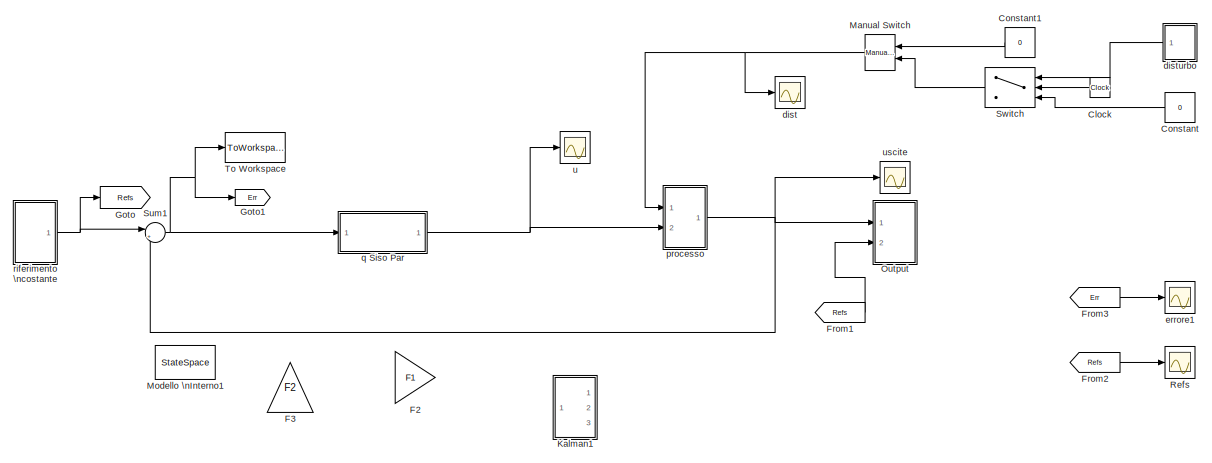
[diagram: root canvas - part 1/2, left side, full height]
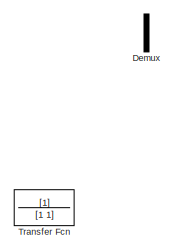
[diagram: root canvas - part 2/2, middle right region]
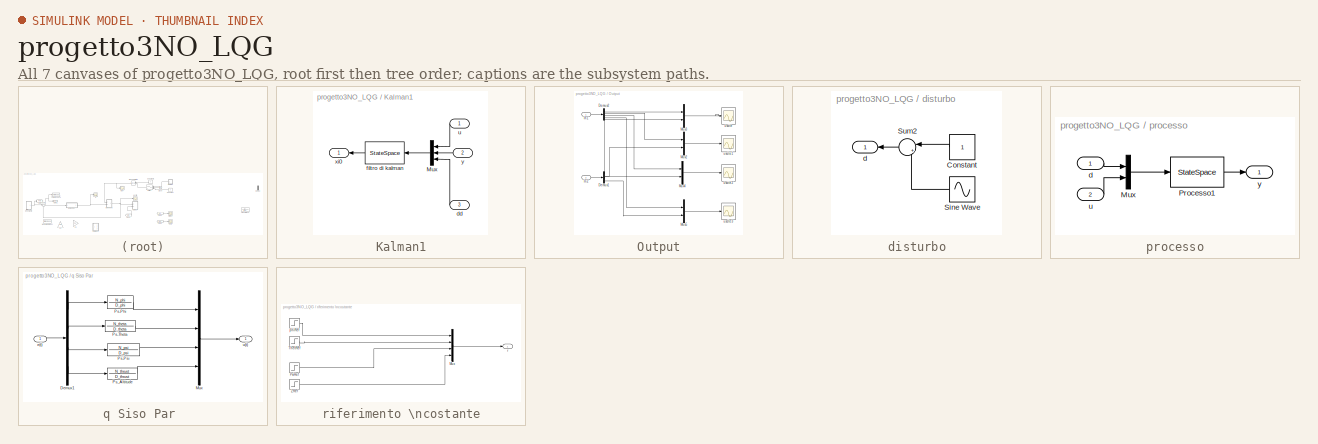
[diagram: thumbnail index - all 7 canvases of the model, root first then tree order]
MODEL progetto3NO_LQG
KIND model
BLOCK [Clock] Clock
  SID = 104
BLOCK [Constant] Constant
  SID = 106
  Value = 0
BLOCK [Constant] Constant1
  SID = 148
  Value = 0
BLOCK [Demux] Demux
  DisplayOption = bar
  Outputs = 2
  Ports = [1, 2]
  SID = 111
BLOCK [Gain] F2
  Gain = F1
  Multiplication = Matrix(K*u) (u vector)
  OutDataTypeStr = Inherit: Inherit via internal rule
  ParamDataTypeStr = Inherit: Inherit via internal rule
  SID = 137
  SaturateOnIntegerOverflow = off
BLOCK [Gain] F3
  Gain = F2
  Multiplication = Matrix(K*u) (u vector)
  OutDataTypeStr = Inherit: Inherit via internal rule
  ParamDataTypeStr = Inherit: Inherit via internal rule
  SID = 134
  SaturateOnIntegerOverflow = off
BLOCK [From] From1
  GotoTag = Refs
  SID = 69
BLOCK [From] From2
  GotoTag = Refs
  SID = 84
BLOCK [From] From3
  GotoTag = Err
  SID = 85
BLOCK [Goto] Goto
  GotoTag = Refs
  SID = 68
BLOCK [Goto] Goto1
  GotoTag = Err
  SID = 87
BLOCK [SubSystem] Kalman1
  FunctionWithSeparateData = off
  MaskHideContents = off
  MinAlgLoopOccurrences = off
  Opaque = off
  Ports = [3, 1]
  PropExecContextOutsideSubsystem = off
  RTWSystemCode = Auto
  RequestExecContextInheritance = off
  SID = 138
BLOCK [Mux] Kalman1/Mux
  DisplayOption = bar
  Inputs = [4 4 1]
  Ports = [3, 1]
  SID = 142
BLOCK [Inport] Kalman1/dd
  IconDisplay = Port number
  Port = 3
  SID = 141
BLOCK [StateSpace] Kalman1/filtro di kalman
  A = Aoss
  B = Boss
  C = Coss
  D = Doss
  SID = 143
BLOCK [Inport] Kalman1/u
  IconDisplay = Port number
  SID = 139
BLOCK [Outport] Kalman1/xi0
  IconDisplay = Port number
  SID = 144
BLOCK [Inport] Kalman1/y
  IconDisplay = Port number
  Port = 2
  SID = 140
BLOCK [Reference] Manual Switch  REF=simulink/Signal\nRouting/Manual Switch
  Ports = [2, 1]
  SID = 149
  SourceBlock = simulink/Signal\nRouting/Manual Switch
  SourceType = Manual Switch
  action = 0
  sw = 0
  varsize = off
BLOCK [StateSpace] Modello \nInterno1
  A = AMI
  B = BMI
  C = CMI
  D = DMI
  SID = 136
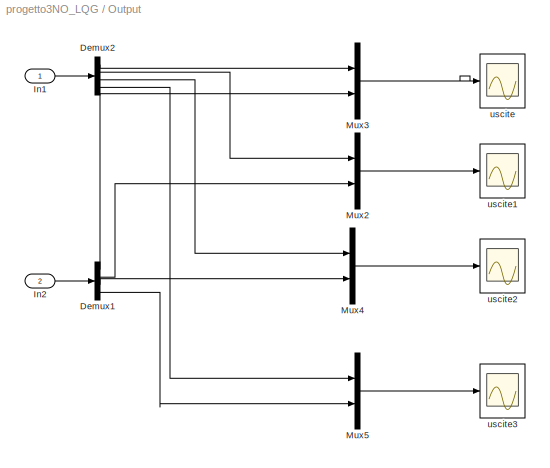
BLOCK [SubSystem] Output
  FunctionWithSeparateData = off
  MaskHideContents = off
  MinAlgLoopOccurrences = off
  Opaque = off
  Ports = [2]
  PropExecContextOutsideSubsystem = off
  RTWSystemCode = Auto
  RequestExecContextInheritance = off
  SID = 71
BLOCK [Demux] Output/Demux1
  DisplayOption = bar
  Ports = [1, 4]
  SID = 74
BLOCK [Demux] Output/Demux2
  DisplayOption = bar
  Ports = [1, 4]
  SID = 76
BLOCK [Inport] Output/In1
  IconDisplay = Port number
  SID = 72
BLOCK [Inport] Output/In2
  IconDisplay = Port number
  Port = 2
  SID = 73
BLOCK [Mux] Output/Mux2
  DisplayOption = bar
  Inputs = 2
  Ports = [2, 1]
  SID = 77
BLOCK [Mux] Output/Mux3
  DisplayOption = bar
  Inputs = 2
  Ports = [2, 1]
  SID = 64
BLOCK [Mux] Output/Mux4
  DisplayOption = bar
  Inputs = 2
  Ports = [2, 1]
  SID = 79
BLOCK [Mux] Output/Mux5
  DisplayOption = bar
  Inputs = 2
  Ports = [2, 1]
  SID = 81
BLOCK [Scope] Output/uscite
  DataFormat = StructureWithTime
  Floating = off
  LimitDataPoints = off
  NumInputPorts = 1
  Ports = [1]
  SID = 25
  SampleTime = 0
  ShowLegends = off
  TickLabels = on
  YMax = 7
  YMin = -3.5
  ZoomMode = xonly
BLOCK [Scope] Output/uscite1
  DataFormat = StructureWithTime
  Floating = off
  LimitDataPoints = off
  NumInputPorts = 1
  Ports = [1]
  SID = 78
  SampleTime = 0
  SaveName = ScopeData4
  ShowLegends = off
  TickLabels = on
  TimeRange = 30
  YMax = 4.25
  YMin = 0.75
  ZoomMode = xonly
BLOCK [Scope] Output/uscite2
  DataFormat = StructureWithTime
  Floating = off
  LimitDataPoints = off
  NumInputPorts = 1
  Ports = [1]
  SID = 80
  SampleTime = 0
  SaveName = ScopeData6
  ShowLegends = off
  TickLabels = on
  YMax = 4.25
  YMin = 0.75
  ZoomMode = xonly
BLOCK [Scope] Output/uscite3
  DataFormat = StructureWithTime
  Floating = off
  LimitDataPoints = off
  NumInputPorts = 1
  Ports = [1]
  SID = 82
  SampleTime = 0
  SaveName = ScopeData7
  ShowLegends = off
  TickLabels = on
  YMax = 4.25
  YMin = 0.75
  ZoomMode = xonly
BLOCK [Scope] Refs
  DataFormat = StructureWithTime
  Floating = off
  LimitDataPoints = off
  NumInputPorts = 1
  Ports = [1]
  SID = 83
  SampleTime = 0
  SaveName = ScopeData1
  ShowLegends = off
BLOCK [Sum] Sum1
  IconShape = round
  InputSameDT = off
  Inputs = |+-
  OutDataTypeStr = Inherit: Inherit via internal rule
  Ports = [2, 1]
  SID = 24
  SaturateOnIntegerOverflow = off
BLOCK [Switch] Switch
  InputSameDT = off
  SID = 103
  SaturateOnIntegerOverflow = off
  Threshold = 5
BLOCK [ToWorkspace] To Workspace
  MaxDataPoints = inf
  Ports = [1]
  SID = 59
  SampleTime = -1
  SaveFormat = Structure
  VariableName = simout
BLOCK [TransferFcn] Transfer Fcn
  Denominator = [1 1]
  SID = 116
BLOCK [Scope] dist
  DataFormat = StructureWithTime
  Floating = off
  LimitDataPoints = off
  NumInputPorts = 1
  Ports = [1]
  SID = 54
  SampleTime = 0
  SaveName = ScopeData5
  ShowLegends = off
BLOCK [SubSystem] disturbo
  FunctionWithSeparateData = off
  MaskHideContents = off
  MinAlgLoopOccurrences = off
  Opaque = off
  Ports = [0, 1]
  PropExecContextOutsideSubsystem = off
  RTWSystemCode = Auto
  RequestExecContextInheritance = off
  SID = 50
BLOCK [Constant] disturbo/Constant
  SID = 47
BLOCK [Sin] disturbo/Sine Wave
  Amplitude = 3
  Frequency = omega
  Ports = [0, 1]
  SID = 48
  SampleTime = 0
BLOCK [Sum] disturbo/Sum2
  IconShape = round
  InputSameDT = off
  Inputs = |++
  OutDataTypeStr = Inherit: Inherit via internal rule
  Ports = [2, 1]
  SID = 49
  SaturateOnIntegerOverflow = off
BLOCK [Outport] disturbo/d
  IconDisplay = Port number
  SID = 51
BLOCK [Scope] errore1
  DataFormat = StructureWithTime
  Floating = off
  LimitDataPoints = off
  NumInputPorts = 1
  Ports = [1]
  SID = 86
  SampleTime = 0
  SaveName = ScopeData8
  ShowLegends = off
BLOCK [SubSystem] processo
  FunctionWithSeparateData = off
  MaskHideContents = off
  MinAlgLoopOccurrences = off
  Opaque = off
  Ports = [2, 1]
  PropExecContextOutsideSubsystem = off
  RTWSystemCode = Auto
  RequestExecContextInheritance = off
  SID = 43
BLOCK [Mux] processo/Mux
  DisplayOption = bar
  Inputs = [1 4]
  Ports = [2, 1]
  SID = 41
BLOCK [StateSpace] processo/Processo1
  A = AMin
  B = Bmod
  C = ClocalMin
  D = Dmod
  SID = 42
BLOCK [Inport] processo/d
  IconDisplay = Port number
  SID = 44
BLOCK [Inport] processo/u
  IconDisplay = Port number
  Port = 2
  SID = 46
BLOCK [Outport] processo/y
  IconDisplay = Port number
  SID = 45
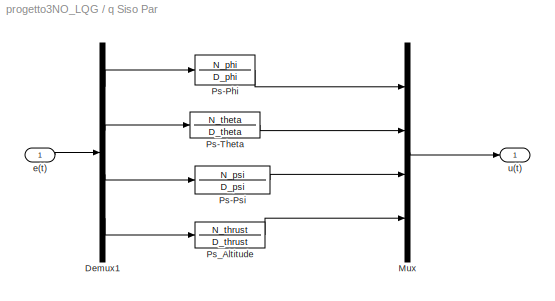
BLOCK [SubSystem] q Siso Par 
  FunctionWithSeparateData = off
  MaskHideContents = off
  MinAlgLoopOccurrences = off
  Opaque = off
  Ports = [1, 1]
  PropExecContextOutsideSubsystem = off
  RTWSystemCode = Auto
  RequestExecContextInheritance = off
  SID = 125
BLOCK [Demux] q Siso Par /Demux1
  DisplayOption = bar
  Ports = [1, 4]
  SID = 127
BLOCK [Mux] q Siso Par /Mux
  DisplayOption = bar
  Ports = [4, 1]
  SID = 128
BLOCK [TransferFcn] q Siso Par /Ps-Phi
  Denominator = D_phi
  Numerator = N_phi
  SID = 129
BLOCK [TransferFcn] q Siso Par /Ps-Psi
  Denominator = D_psi
  Numerator = N_psi
  SID = 130
BLOCK [TransferFcn] q Siso Par /Ps-Theta
  Denominator = D_theta
  Numerator = N_theta
  SID = 132
BLOCK [TransferFcn] q Siso Par /Ps_Altitude
  Denominator = D_thrust
  Numerator = N_thrust
  SID = 131
BLOCK [Inport] q Siso Par /e(t)
  IconDisplay = Port number
  SID = 126
BLOCK [Outport] q Siso Par /u(t)
  IconDisplay = Port number
  SID = 133
BLOCK [SubSystem] riferimento \ncostante
  FunctionWithSeparateData = off
  MaskHideContents = off
  MinAlgLoopOccurrences = off
  Opaque = off
  Ports = [0, 1]
  PropExecContextOutsideSubsystem = off
  RTWSystemCode = Auto
  RequestExecContextInheritance = off
  SID = 11
BLOCK [Mux] riferimento \ncostante/Mux
  DisplayOption = bar
  Inputs = [1 1 1 1]
  Ports = [4, 1]
  SID = 10
BLOCK [Step] riferimento \ncostante/PsiRef
  After = 2.5
  SID = 152
  SampleTime = 0
  Time = 0.8
BLOCK [Step] riferimento \ncostante/ThetRef
  After = 2
  SID = 151
  SampleTime = 0
  Time = 0.5
BLOCK [Step] riferimento \ncostante/ZRef
  After = 2.5
  SID = 146
  SampleTime = 0
  Time = 3
BLOCK [Step] riferimento \ncostante/phiRef
  After = 1.5
  SID = 150
  SampleTime = 0
BLOCK [Outport] riferimento \ncostante/r
  IconDisplay = Port number
  SID = 12
BLOCK [Scope] u
  DataFormat = StructureWithTime
  Floating = off
  LimitDataPoints = off
  NumInputPorts = 1
  Ports = [1]
  SID = 28
  SampleTime = 0
  SaveName = ScopeData3
  ShowLegends = off
  ZoomMode = xonly
BLOCK [Scope] uscite
  DataFormat = StructureWithTime
  Floating = off
  LimitDataPoints = off
  NumInputPorts = 1
  Ports = [1]
  SID = 88
  SampleTime = 0
  SaveName = ScopeData2
  ShowLegends = off
  TimeRange = 80
  YMax = 15.6384603336206
  YMin = -17.45927637246444
  ZoomMode = yonly
LINE Clock:1 -> Switch:2
LINE Constant1:1 -> Manual Switch:1
LINE Constant:1 -> Switch:3
LINE From1:1 -> Output:2
LINE From2:1 -> Refs:1
LINE From3:1 -> errore1:1
LINE Kalman1/Mux:1 -> Kalman1/filtro di kalman:1
LINE Kalman1/dd:1 -> Kalman1/Mux:3
LINE Kalman1/filtro di kalman:1 -> Kalman1/xi0:1
LINE Kalman1/u:1 -> Kalman1/Mux:1
LINE Kalman1/y:1 -> Kalman1/Mux:2
NET Manual Switch:1 -> dist:1, processo:1
LINE Output/Demux1:1 -> Output/Mux3:2
LINE Output/Demux1:2 -> Output/Mux2:2
LINE Output/Demux1:3 -> Output/Mux4:2
LINE Output/Demux1:4 -> Output/Mux5:2
LINE Output/Demux2:1 -> Output/Mux3:1
LINE Output/Demux2:2 -> Output/Mux2:1
LINE Output/Demux2:3 -> Output/Mux4:1
LINE Output/Demux2:4 -> Output/Mux5:1
LINE Output/In1:1 -> Output/Demux2:1
LINE Output/In2:1 -> Output/Demux1:1
LINE Output/Mux2:1 -> Output/uscite1:1
LINE Output/Mux3:1 -> Output/uscite:1
LINE Output/Mux4:1 -> Output/uscite2:1
LINE Output/Mux5:1 -> Output/uscite3:1
NET Sum1:1 -> Goto1:1, To Workspace:1, q Siso Par :1
LINE Switch:1 -> Manual Switch:2
LINE disturbo/Constant:1 -> disturbo/Sum2:1
LINE disturbo/Sine Wave:1 -> disturbo/Sum2:2
LINE disturbo/Sum2:1 -> disturbo/d:1
LINE disturbo:1 -> Switch:1
LINE processo/Mux:1 -> processo/Processo1:1
LINE processo/Processo1:1 -> processo/y:1
LINE processo/d:1 -> processo/Mux:1
LINE processo/u:1 -> processo/Mux:2
NET processo:1 -> Output:1, Sum1:2, uscite:1
LINE q Siso Par /Demux1:1 -> q Siso Par /Ps-Phi:1
LINE q Siso Par /Demux1:2 -> q Siso Par /Ps-Theta:1
LINE q Siso Par /Demux1:3 -> q Siso Par /Ps-Psi:1
LINE q Siso Par /Demux1:4 -> q Siso Par /Ps_Altitude:1
LINE q Siso Par /Mux:1 -> q Siso Par /u(t):1
LINE q Siso Par /Ps-Phi:1 -> q Siso Par /Mux:1
LINE q Siso Par /Ps-Psi:1 -> q Siso Par /Mux:3
LINE q Siso Par /Ps-Theta:1 -> q Siso Par /Mux:2
LINE q Siso Par /Ps_Altitude:1 -> q Siso Par /Mux:4
LINE q Siso Par /e(t):1 -> q Siso Par /Demux1:1
NET q Siso Par :1 -> processo:2, u:1
LINE riferimento \ncostante/Mux:1 -> riferimento \ncostante/r:1
LINE riferimento \ncostante/PsiRef:1 -> riferimento \ncostante/Mux:3
LINE riferimento \ncostante/ThetRef:1 -> riferimento \ncostante/Mux:2
LINE riferimento \ncostante/ZRef:1 -> riferimento \ncostante/Mux:4
LINE riferimento \ncostante/phiRef:1 -> riferimento \ncostante/Mux:1
NET riferimento \ncostante:1 -> Goto:1, Sum1:1
note: NET lines group one-source signal fan-out (src -> all destinations, sorted); 1:1 wires keep LINE
